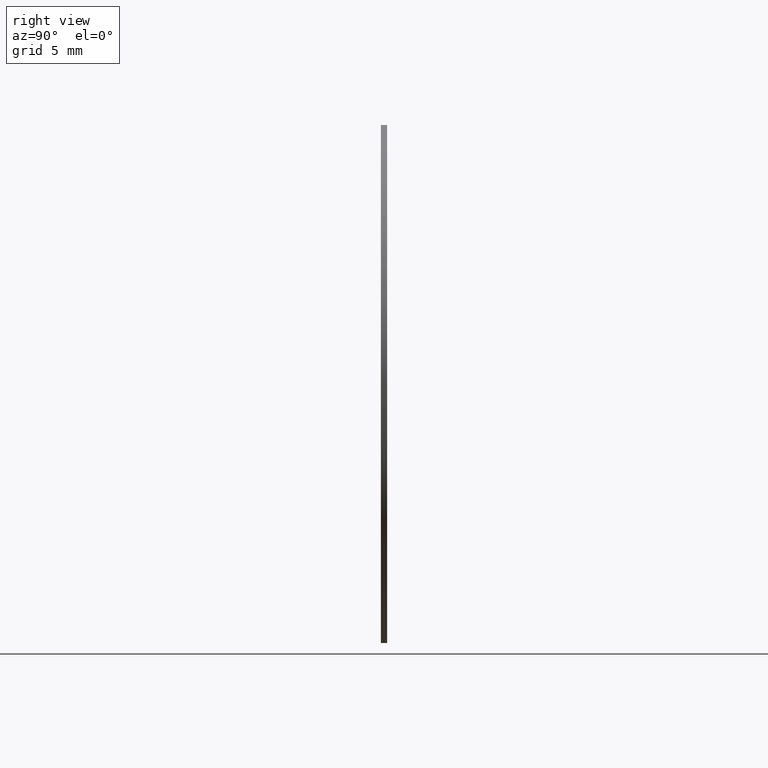
[diagram: clean part render]
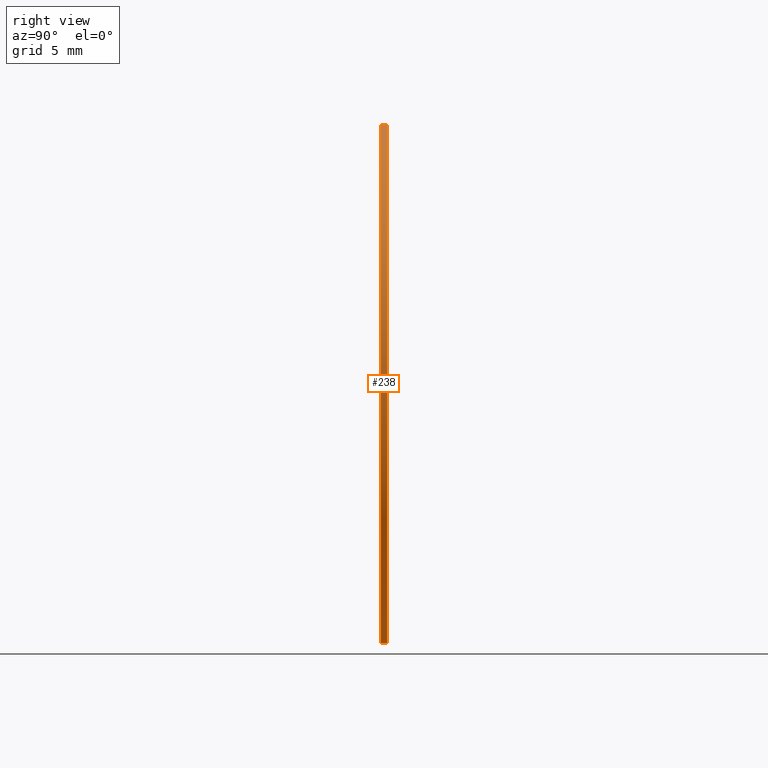
[diagram: same view with one face highlighted and labeled with its STEP entity id]
A machine part, right view. The second image highlights one B-rep face of the part: STEP entity #238.
In plain terms, the highlighted cylindrical surface (partial cylindrical patch) has radius 12.5 mm, axis along (-0, -1, -0).
Its self-contained STEP definition (entity closure, byte-faithful):
#8 = CARTESIAN_POINT ( 'NONE',  ( 1.530808498934191521E-15, 0.1499999999999999944, 12.50000000000000000 ) ) ;
#17 = CARTESIAN_POINT ( 'NONE',  ( 0.000000000000000000, 0.1499999999999999944, -12.50000000000000000 ) ) ;
#21 = ORIENTED_EDGE ( 'NONE', *, *, #209, .F. ) ;
#32 = VERTEX_POINT ( 'NONE', #210 ) ;
#35 = EDGE_CURVE ( 'NONE', #32, #70, #175, .T. ) ;
#55 = VERTEX_POINT ( 'NONE', #77 ) ;
#66 = DIRECTION ( 'NONE',  ( -0.000000000000000000, -1.000000000000000000, -0.000000000000000000 ) ) ;
#70 = VERTEX_POINT ( 'NONE', #137 ) ;
#77 = CARTESIAN_POINT ( 'NONE',  ( 1.530808498934191521E-15, 0.1499999999999999944, 12.50000000000000000 ) ) ;
#79 = VERTEX_POINT ( 'NONE', #207 ) ;
#81 = DIRECTION ( 'NONE',  ( 0.000000000000000000, 1.000000000000000000, 0.000000000000000000 ) ) ;
#82 = CYLINDRICAL_SURFACE ( 'NONE', #201, 12.50000000000000000 ) ;
#93 = VECTOR ( 'NONE', #150, 1000.000000000000000 ) ;
#94 = CARTESIAN_POINT ( 'NONE',  ( 0.000000000000000000, -0.1499999999999999944, 0.000000000000000000 ) ) ;
#96 = ORIENTED_EDGE ( 'NONE', *, *, #158, .F. ) ;
#100 = LINE ( 'NONE', #8, #231 ) ;
#118 = DIRECTION ( 'NONE',  ( 0.000000000000000000, 0.000000000000000000, -1.000000000000000000 ) ) ;
#120 = AXIS2_PLACEMENT_3D ( 'NONE', #139, #81, #213 ) ;
#137 = CARTESIAN_POINT ( 'NONE',  ( 0.000000000000000000, -0.1499999999999999944, -12.50000000000000000 ) ) ;
#138 = DIRECTION ( 'NONE',  ( 0.000000000000000000, 1.000000000000000000, 0.000000000000000000 ) ) ;
#139 = CARTESIAN_POINT ( 'NONE',  ( 0.000000000000000000, 0.1499999999999999944, 0.000000000000000000 ) ) ;
#143 = DIRECTION ( 'NONE',  ( -0.000000000000000000, -1.000000000000000000, -0.000000000000000000 ) ) ;
#150 = DIRECTION ( 'NONE',  ( -0.000000000000000000, -1.000000000000000000, -0.000000000000000000 ) ) ;
#158 = EDGE_CURVE ( 'NONE', #79, #70, #184, .T. ) ;
#174 = ORIENTED_EDGE ( 'NONE', *, *, #35, .T. ) ;
#175 = CIRCLE ( 'NONE', #200, 12.50000000000000000 ) ;
#184 = LINE ( 'NONE', #17, #93 ) ;
#196 = CIRCLE ( 'NONE', #120, 12.50000000000000000 ) ;
#200 = AXIS2_PLACEMENT_3D ( 'NONE', #94, #138, #229 ) ;
#201 = AXIS2_PLACEMENT_3D ( 'NONE', #237, #66, #118 ) ;
#207 = CARTESIAN_POINT ( 'NONE',  ( 0.000000000000000000, 0.1499999999999999944, -12.50000000000000000 ) ) ;
#209 = EDGE_CURVE ( 'NONE', #55, #79, #196, .T. ) ;
#210 = CARTESIAN_POINT ( 'NONE',  ( 1.530808498934191521E-15, -0.1499999999999999944, 12.50000000000000000 ) ) ;
#213 = DIRECTION ( 'NONE',  ( 0.000000000000000000, 0.000000000000000000, 1.000000000000000000 ) ) ;
#214 = FACE_OUTER_BOUND ( 'NONE', #232, .T. ) ;
#218 = ORIENTED_EDGE ( 'NONE', *, *, #242, .T. ) ;
#229 = DIRECTION ( 'NONE',  ( 0.000000000000000000, 0.000000000000000000, 1.000000000000000000 ) ) ;
#231 = VECTOR ( 'NONE', #143, 1000.000000000000000 ) ;
#232 = EDGE_LOOP ( 'NONE', ( #21, #218, #174, #96 ) ) ;
#237 = CARTESIAN_POINT ( 'NONE',  ( 0.000000000000000000, 0.1499999999999999944, 0.000000000000000000 ) ) ;
#238 = ADVANCED_FACE ( 'NONE', ( #214 ), #82, .T. ) ;
#242 = EDGE_CURVE ( 'NONE', #55, #32, #100, .T. ) ;